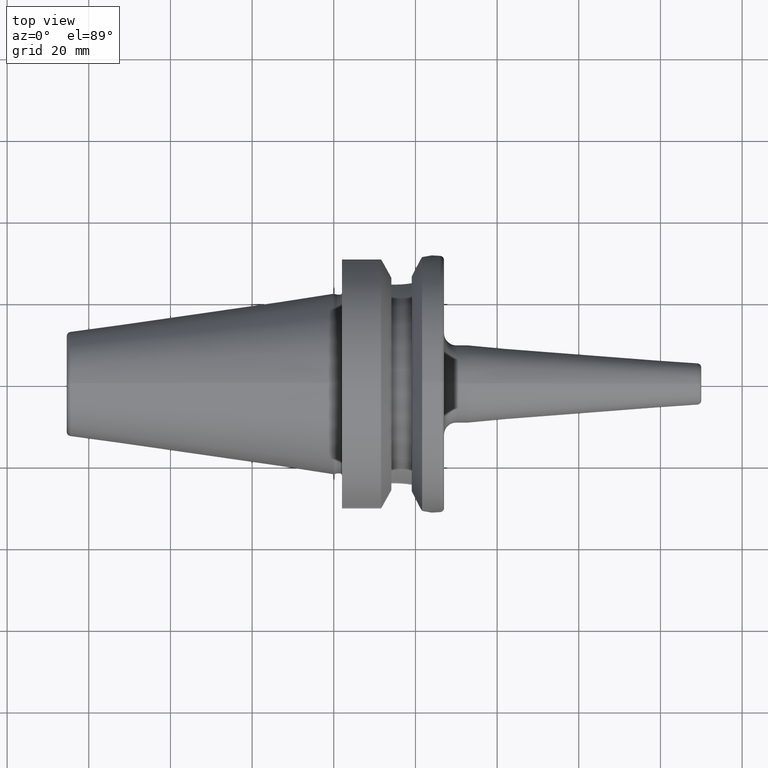
[diagram: clean part render]
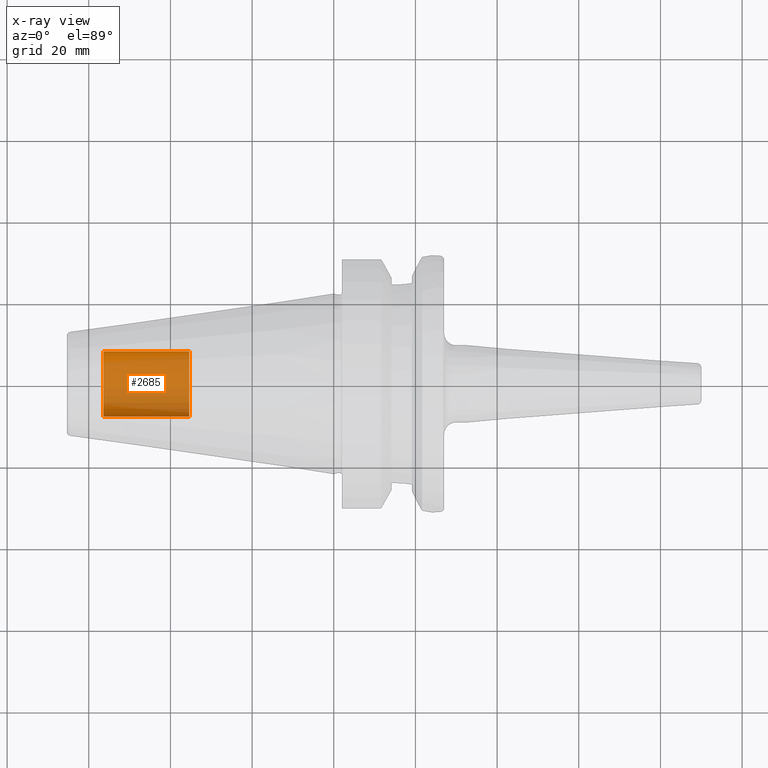
[diagram: x-ray — body ghosted, one internal face saturated and labeled with its STEP entity id]
A machine part, top view, then the same camera in x-ray: the body is ghosted and one INTERNAL B-rep face — a face not visible from any outside direction — is saturated and labeled: STEP entity #2685.
In plain terms, the highlighted cylindrical surface (edge-blend (fillet) strip) has radius 8 mm, axis along (-1, 0, 0).
Its self-contained STEP definition (entity closure, byte-faithful):
#2620=CARTESIAN_POINT('',(-5.64E1,0.E0,0.E0));
#2621=DIRECTION('',(1.E0,0.E0,0.E0));
#2622=DIRECTION('',(0.E0,-1.E0,0.E0));
#2623=AXIS2_PLACEMENT_3D('',#2620,#2621,#2622);
#2630=DIRECTION('',(1.E0,0.E0,0.E0));
#2631=VECTOR('',#2630,2.1E1);
#2632=CARTESIAN_POINT('',(-5.64E1,-8.E0,0.E0));
#2633=LINE('',#2632,#2631);
#2634=DIRECTION('',(1.E0,0.E0,0.E0));
#2635=VECTOR('',#2634,2.1E1);
#2636=CARTESIAN_POINT('',(-5.64E1,8.E0,0.E0));
#2637=LINE('',#2636,#2635);
#2643=CARTESIAN_POINT('',(-3.54E1,0.E0,0.E0));
#2644=DIRECTION('',(-1.E0,0.E0,0.E0));
#2645=DIRECTION('',(0.E0,1.E0,0.E0));
#2646=AXIS2_PLACEMENT_3D('',#2643,#2644,#2645);
#2658=CARTESIAN_POINT('',(-3.54E1,8.E0,0.E0));
#2659=CARTESIAN_POINT('',(-3.54E1,-8.E0,0.E0));
#2660=VERTEX_POINT('',#2658);
#2661=VERTEX_POINT('',#2659);
#2662=CARTESIAN_POINT('',(-5.64E1,8.E0,0.E0));
#2663=CARTESIAN_POINT('',(-5.64E1,-8.E0,0.E0));
#2664=VERTEX_POINT('',#2662);
#2665=VERTEX_POINT('',#2663);
#2670=CARTESIAN_POINT('',(-1.373367445015E1,0.E0,0.E0));
#2671=DIRECTION('',(-1.E0,0.E0,0.E0));
#2672=DIRECTION('',(0.E0,1.E0,0.E0));
#2673=AXIS2_PLACEMENT_3D('',#2670,#2671,#2672);
#2674=CYLINDRICAL_SURFACE('',#2673,8.E0);
#2676=ORIENTED_EDGE('',*,*,#2675,.T.);
#2678=ORIENTED_EDGE('',*,*,#2677,.T.);
#2680=ORIENTED_EDGE('',*,*,#2679,.T.);
#2682=ORIENTED_EDGE('',*,*,#2681,.F.);
#2683=EDGE_LOOP('',(#2676,#2678,#2680,#2682));
#2684=FACE_OUTER_BOUND('',#2683,.F.);
#2685=ADVANCED_FACE('',(#2684),#2674,.F.);
#2624=CIRCLE('',#2623,8.E0);
#2647=CIRCLE('',#2646,8.E0);
#2675=EDGE_CURVE('',#2665,#2664,#2624,.T.);
#2677=EDGE_CURVE('',#2664,#2660,#2637,.T.);
#2679=EDGE_CURVE('',#2660,#2661,#2647,.T.);
#2681=EDGE_CURVE('',#2665,#2661,#2633,.T.);